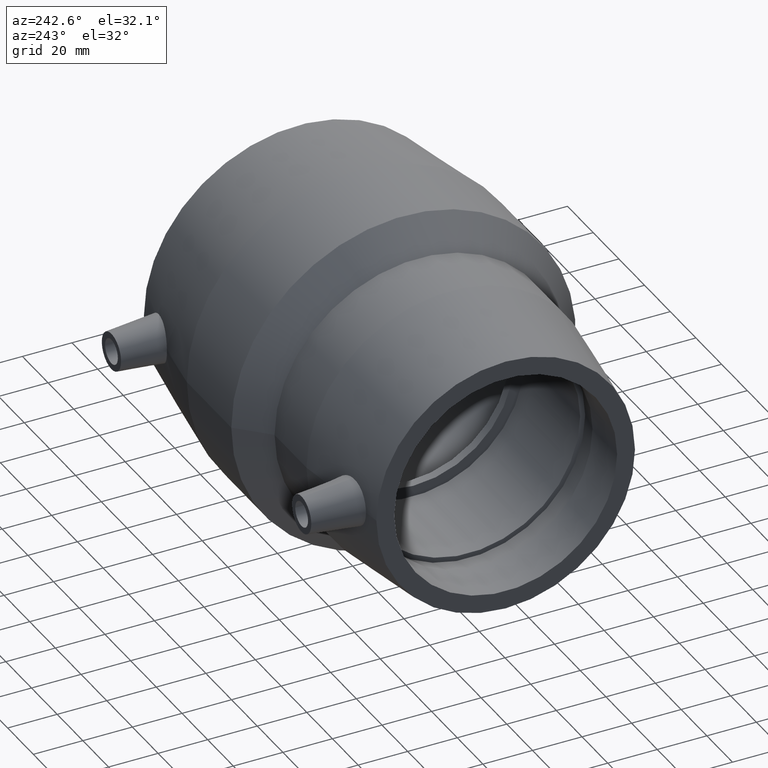
[diagram: clean part render]
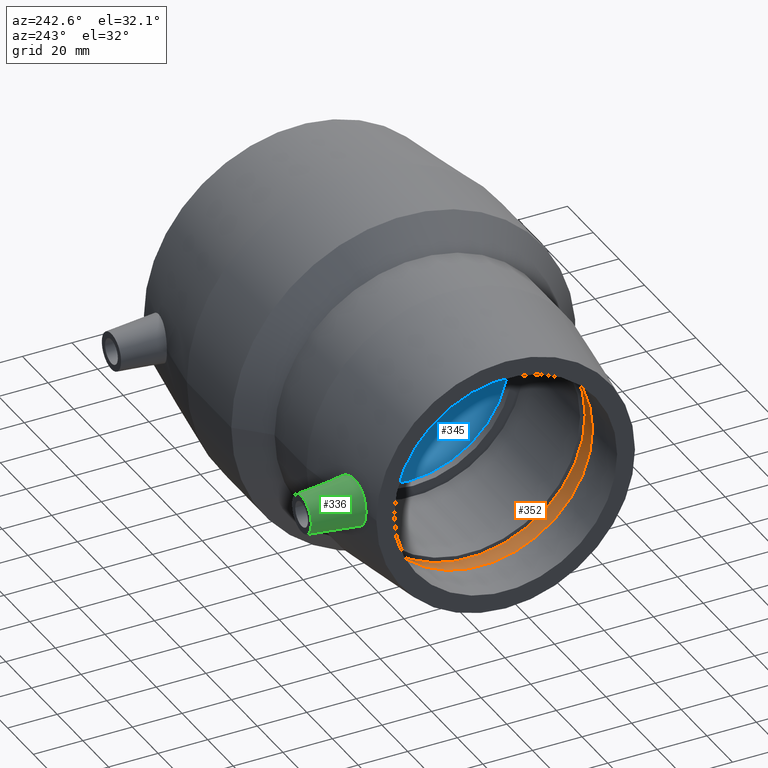
[diagram: same view with three faces highlighted in distinct colors, each labeled with its STEP entity id]
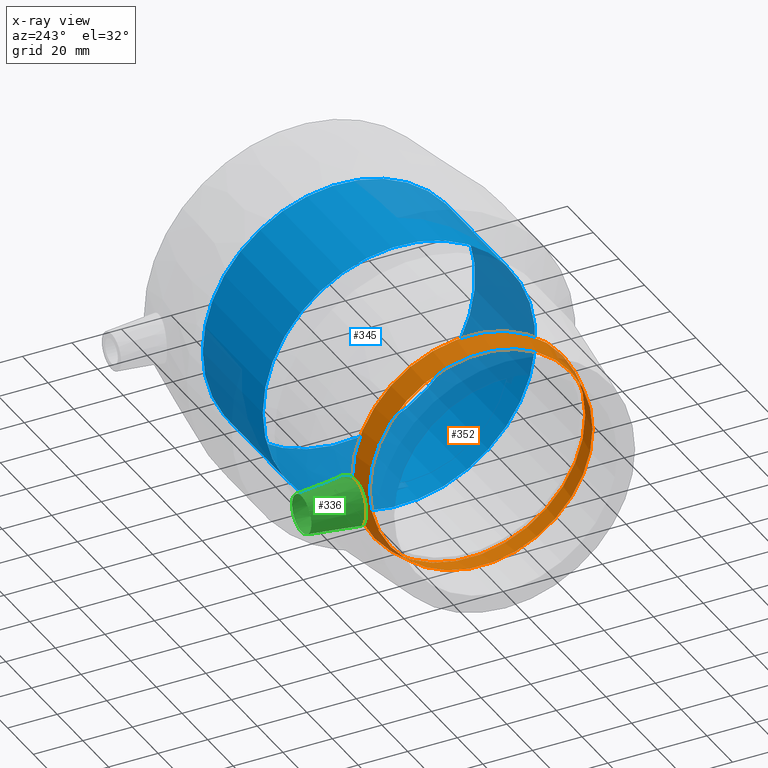
[diagram: x-ray of the same camera — body ghosted, the three highlighted faces saturated]
A machine part, auxiliary view with three faces highlighted in distinct colors.
The next image is the same camera in x-ray (body ghosted, the three faces saturated) — at least one of them is partly hidden behind the body in this view.
Their STEP definitions:

[orange] entity #352 — the highlighted conical surface has half-angle 12 deg.
#23=CONICAL_SURFACE('',#411,46.0202714960161,12.);
#51=FACE_BOUND('',#152,.T.);
#94=FACE_OUTER_BOUND('',#151,.T.);
#151=EDGE_LOOP('',(#304));
#152=EDGE_LOOP('',(#305));
#185=CIRCLE('',#410,47.0405429920322);
#186=CIRCLE('',#412,45.);
#216=VERTEX_POINT('',#688);
#217=VERTEX_POINT('',#691);
#247=EDGE_CURVE('',#216,#216,#185,.T.);
#248=EDGE_CURVE('',#217,#217,#186,.T.);
#304=ORIENTED_EDGE('',*,*,#248,.F.);
#305=ORIENTED_EDGE('',*,*,#247,.T.);
#352=ADVANCED_FACE('',(#94,#51),#23,.F.);
#410=AXIS2_PLACEMENT_3D('',#689,#524,#525);
#411=AXIS2_PLACEMENT_3D('',#690,#526,#527);
#412=AXIS2_PLACEMENT_3D('',#692,#528,#529);
#524=DIRECTION('center_axis',(1.,1.83697019872103E-16,0.));
#525=DIRECTION('ref_axis',(0.,0.,-1.));
#526=DIRECTION('center_axis',(1.,1.83697019872103E-16,0.));
#527=DIRECTION('ref_axis',(-2.02894640216501E-16,1.,0.));
#528=DIRECTION('center_axis',(1.,1.83697019872103E-16,0.));
#529=DIRECTION('ref_axis',(0.,0.,-1.));
#688=CARTESIAN_POINT('',(-51.7,47.0405429920322,0.));
#689=CARTESIAN_POINT('Origin',(-51.7,5.29047417231657E-15,0.));
#690=CARTESIAN_POINT('Origin',(-56.5,4.40872847693047E-15,0.));
#691=CARTESIAN_POINT('',(-61.3,45.,0.));
#692=CARTESIAN_POINT('Origin',(-61.3,3.52698278154438E-15,0.));

[blue] entity #345 — the highlighted cylindrical surface (bore or boss wall) has radius 55 mm, axis along (1, 0, 0).
#44=FACE_BOUND('',#138,.T.);
#63=CYLINDRICAL_SURFACE('',#397,55.);
#87=FACE_OUTER_BOUND('',#137,.T.);
#137=EDGE_LOOP('',(#290));
#138=EDGE_LOOP('',(#291));
#178=CIRCLE('',#396,55.);
#179=CIRCLE('',#398,55.);
#209=VERTEX_POINT('',#667);
#210=VERTEX_POINT('',#670);
#240=EDGE_CURVE('',#209,#209,#178,.T.);
#241=EDGE_CURVE('',#210,#210,#179,.T.);
#290=ORIENTED_EDGE('',*,*,#241,.F.);
#291=ORIENTED_EDGE('',*,*,#240,.T.);
#345=ADVANCED_FACE('',(#87,#44),#63,.F.);
#396=AXIS2_PLACEMENT_3D('',#668,#496,#497);
#397=AXIS2_PLACEMENT_3D('',#669,#498,#499);
#398=AXIS2_PLACEMENT_3D('',#671,#500,#501);
#496=DIRECTION('center_axis',(1.,1.83697019872103E-16,0.));
#497=DIRECTION('ref_axis',(0.,0.,-1.));
#498=DIRECTION('center_axis',(1.,1.83697019872103E-16,0.));
#499=DIRECTION('ref_axis',(-2.02894640216501E-16,1.,0.));
#500=DIRECTION('center_axis',(1.,1.83697019872103E-16,0.));
#501=DIRECTION('ref_axis',(0.,0.,-1.));
#667=CARTESIAN_POINT('',(49.3,55.,0.));
#668=CARTESIAN_POINT('Origin',(49.3,2.3843873179399E-14,0.));
#669=CARTESIAN_POINT('Origin',(25.9,1.95453629143918E-14,0.));
#670=CARTESIAN_POINT('',(2.5,55.,0.));
#671=CARTESIAN_POINT('Origin',(2.50000000000001,1.52468526493845E-14,0.));

[green] entity #336 — the highlighted conical surface has half-angle 6 deg.
#16=B_SPLINE_CURVE_WITH_KNOTS('',3,(#609,#610,#611,#612,#613,#614,#615,
#616,#617,#618,#619,#620,#621,#622,#623,#624,#625,#626,#627,#628,#629,#630,
#631,#632,#633,#634,#635,#636,#637,#638,#639,#640,#641,#642),
 .UNSPECIFIED.,.T.,.F.,(4,2,2,2,2,2,2,2,2,2,2,2,2,2,2,2,4),(0.,0.356083603461536,
0.712167206923072,1.06981325666478,1.42745930640648,1.78510535614819,2.14275140588989,
2.49883500935143,2.85491861281296,3.23124995654779,3.60758130028261,3.97549099399485,
4.34340068770709,4.71131038141933,5.07922007513157,5.45555141886639,5.83188276260122),
 .UNSPECIFIED.);
#18=CONICAL_SURFACE('',#379,7.5,6.);
#34=FACE_BOUND('',#119,.T.);
#78=FACE_OUTER_BOUND('',#118,.T.);
#118=EDGE_LOOP('',(#271));
#119=EDGE_LOOP('',(#272));
#169=CIRCLE('',#378,7.5);
#199=VERTEX_POINT('',#605);
#200=VERTEX_POINT('',#608);
#230=EDGE_CURVE('',#199,#199,#169,.T.);
#231=EDGE_CURVE('',#200,#200,#16,.T.);
#271=ORIENTED_EDGE('',*,*,#230,.T.);
#272=ORIENTED_EDGE('',*,*,#231,.F.);
#336=ADVANCED_FACE('',(#78,#34),#18,.T.);
#378=AXIS2_PLACEMENT_3D('',#606,#460,#461);
#379=AXIS2_PLACEMENT_3D('',#607,#462,#463);
#460=DIRECTION('center_axis',(0.,-1.,0.));
#461=DIRECTION('ref_axis',(1.,0.,0.));
#462=DIRECTION('center_axis',(0.,-1.,0.));
#463=DIRECTION('ref_axis',(1.,0.,0.));
#605=CARTESIAN_POINT('',(-71.9,74.,9.18485099360515E-16));
#606=CARTESIAN_POINT('Origin',(-64.4,74.,0.));
#607=CARTESIAN_POINT('Origin',(-64.4,74.,0.));
#608=CARTESIAN_POINT('',(-64.7644960238651,53.4478963204583,9.65323409706505));
#609=CARTESIAN_POINT('Ctrl Pts',(-64.7644960238651,53.4478963204583,9.65323409706505));
#610=CARTESIAN_POINT('Ctrl Pts',(-65.9408861830012,53.2924697172556,9.62516247051062));
#611=CARTESIAN_POINT('Ctrl Pts',(-67.1959440109681,53.1704609485049,9.36203918010765));
#612=CARTESIAN_POINT('Ctrl Pts',(-69.5005230744383,53.0253528596803,8.35137862801512));
#613=CARTESIAN_POINT('Ctrl Pts',(-70.5498727831745,52.9998999648365,7.60378953744553));
#614=CARTESIAN_POINT('Ctrl Pts',(-72.2048889150025,52.9936196182335,5.89469812087087));
#615=CARTESIAN_POINT('Ctrl Pts',(-72.9210094960564,53.0120920821309,4.81705680485738));
#616=CARTESIAN_POINT('Ctrl Pts',(-73.8690239764356,53.0459706011957,2.46578904898686));
#617=CARTESIAN_POINT('Ctrl Pts',(-74.1009742898679,53.0591284518233,1.19215349913902));
#618=CARTESIAN_POINT('Ctrl Pts',(-74.1009742898679,53.0591284518233,-1.19215349913902));
#619=CARTESIAN_POINT('Ctrl Pts',(-73.8690239764356,53.0459706011957,-2.46578904898686));
#620=CARTESIAN_POINT('Ctrl Pts',(-72.9210094960564,53.0120920821309,-4.81705680485738));
#621=CARTESIAN_POINT('Ctrl Pts',(-72.2048889150025,52.9936196182335,-5.89469812087087));
#622=CARTESIAN_POINT('Ctrl Pts',(-70.5498727831745,52.9998999648365,-7.60378953744553));
#623=CARTESIAN_POINT('Ctrl Pts',(-69.5005230744383,53.0253528596803,-8.35137862801512));
#624=CARTESIAN_POINT('Ctrl Pts',(-67.1959440109681,53.1704609485049,-9.36203918010765));
#625=CARTESIAN_POINT('Ctrl Pts',(-65.9408861830012,53.2924697172556,-9.62516247051062));
#626=CARTESIAN_POINT('Ctrl Pts',(-63.5212135895142,53.6121608411125,-9.68290194146831));
#627=CARTESIAN_POINT('Ctrl Pts',(-62.2002492245368,53.8353910673948,-9.45525024248381));
#628=CARTESIAN_POINT('Ctrl Pts',(-59.7756788247386,54.3274983119034,-8.47725915086894));
#629=CARTESIAN_POINT('Ctrl Pts',(-58.6714203789039,54.5937931279101,-7.7272396946452));
#630=CARTESIAN_POINT('Ctrl Pts',(-56.9470406681352,55.0429217597811,-6.00120844257418));
#631=CARTESIAN_POINT('Ctrl Pts',(-56.2040197794217,55.2566270140271,-4.91691381126884));
#632=CARTESIAN_POINT('Ctrl Pts',(-55.214828866449,55.550163962133,-2.52969970761692));
#633=CARTESIAN_POINT('Ctrl Pts',(-54.9690011306537,55.6277729963474,-1.22636564570746));
#634=CARTESIAN_POINT('Ctrl Pts',(-54.9690011306537,55.6277729963474,1.22636564570746));
#635=CARTESIAN_POINT('Ctrl Pts',(-55.214828866449,55.550163962133,2.52969970761693));
#636=CARTESIAN_POINT('Ctrl Pts',(-56.2040197794217,55.2566270140271,4.91691381126885));
#637=CARTESIAN_POINT('Ctrl Pts',(-56.9470406681352,55.0429217597811,6.00120844257418));
#638=CARTESIAN_POINT('Ctrl Pts',(-58.6714203789039,54.5937931279101,7.7272396946452));
#639=CARTESIAN_POINT('Ctrl Pts',(-59.7756788247386,54.3274983119034,8.47725915086895));
#640=CARTESIAN_POINT('Ctrl Pts',(-62.2002492245368,53.8353910673948,9.45525024248381));
#641=CARTESIAN_POINT('Ctrl Pts',(-63.5212135895142,53.6121608411125,9.68290194146831));
#642=CARTESIAN_POINT('Ctrl Pts',(-64.7644960238651,53.4478963204583,9.65323409706505));